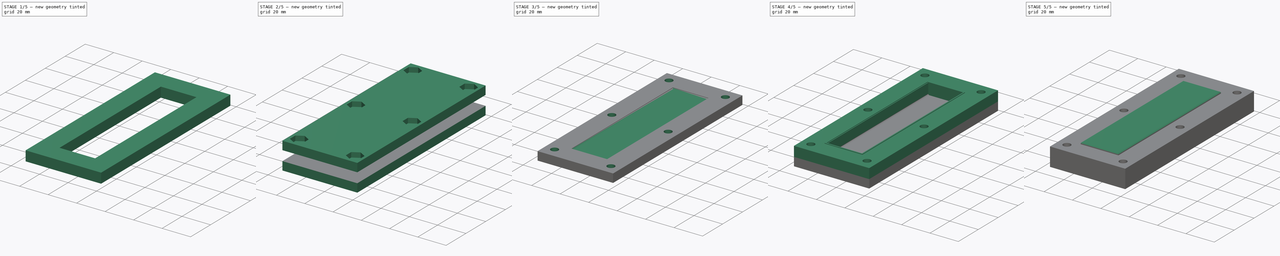
[diagram: build sequence overview — one tinted view per stage of 5, left to right]
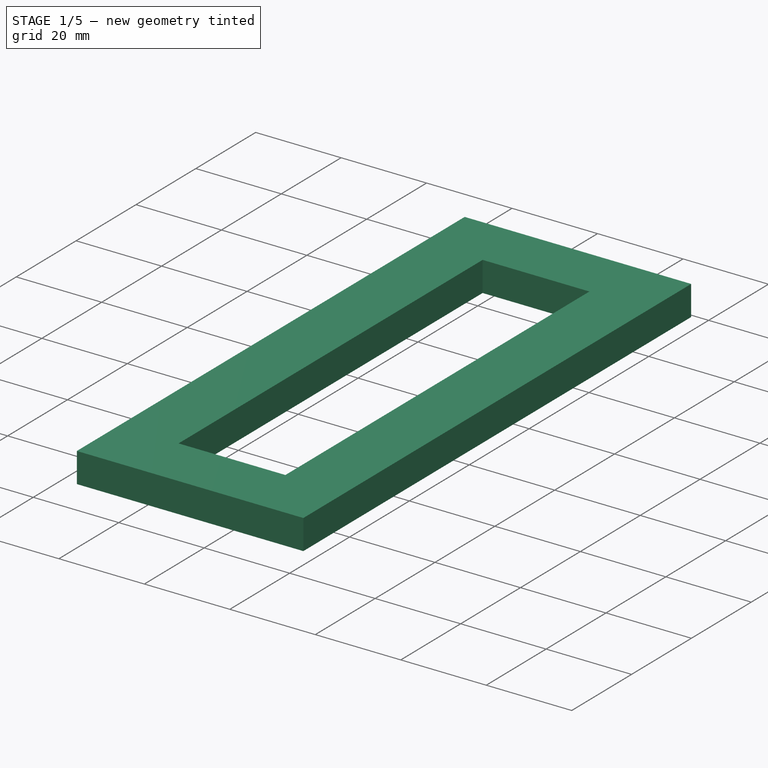
[diagram: stage 1 of 5 — iso view after this stage's code; geometry added in this stage tinted green]
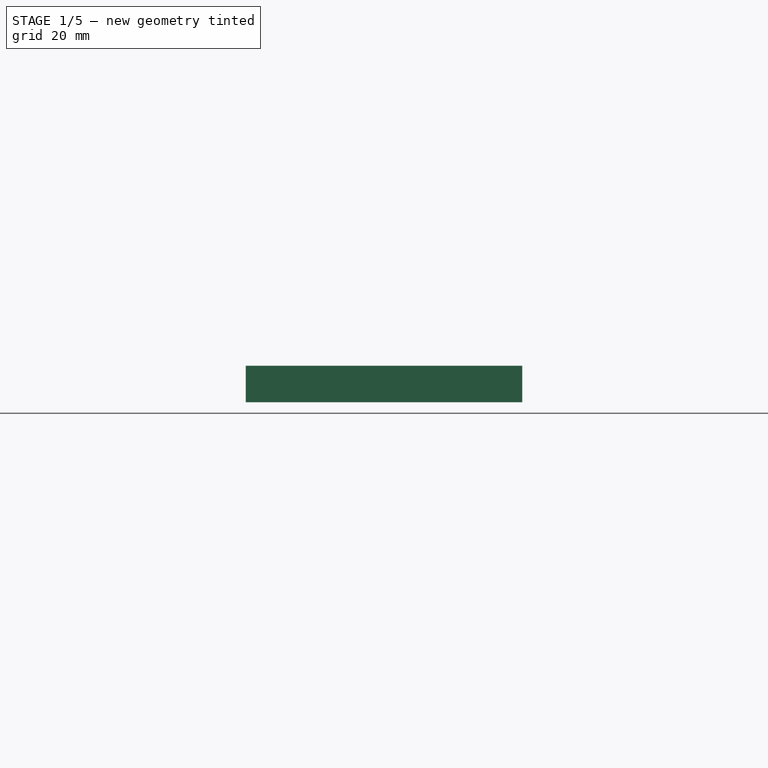
[diagram: stage 1 of 5 — front view after this stage's code; geometry added in this stage tinted green]
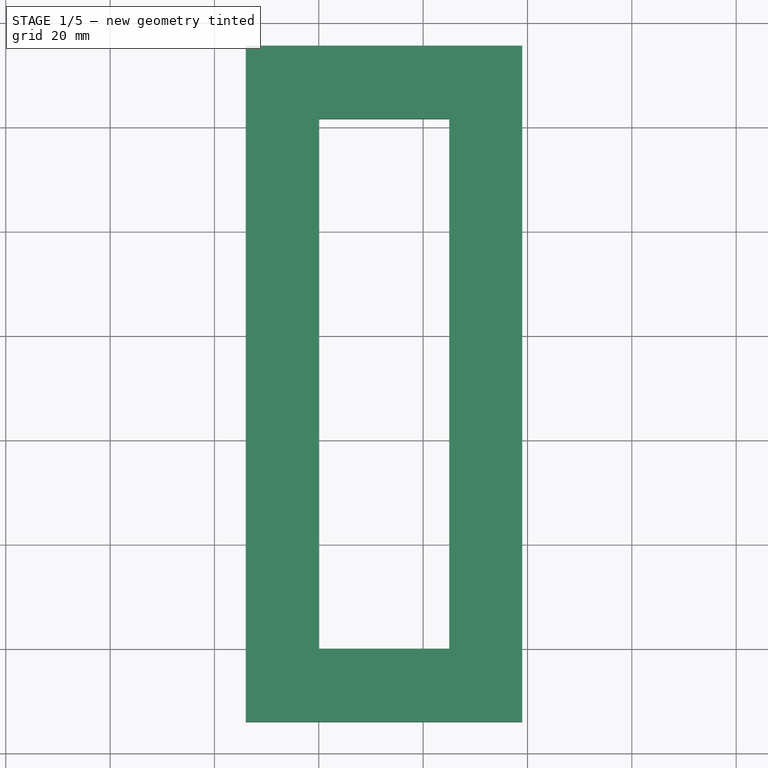
[diagram: stage 1 of 5 — top view after this stage's code; geometry added in this stage tinted green]
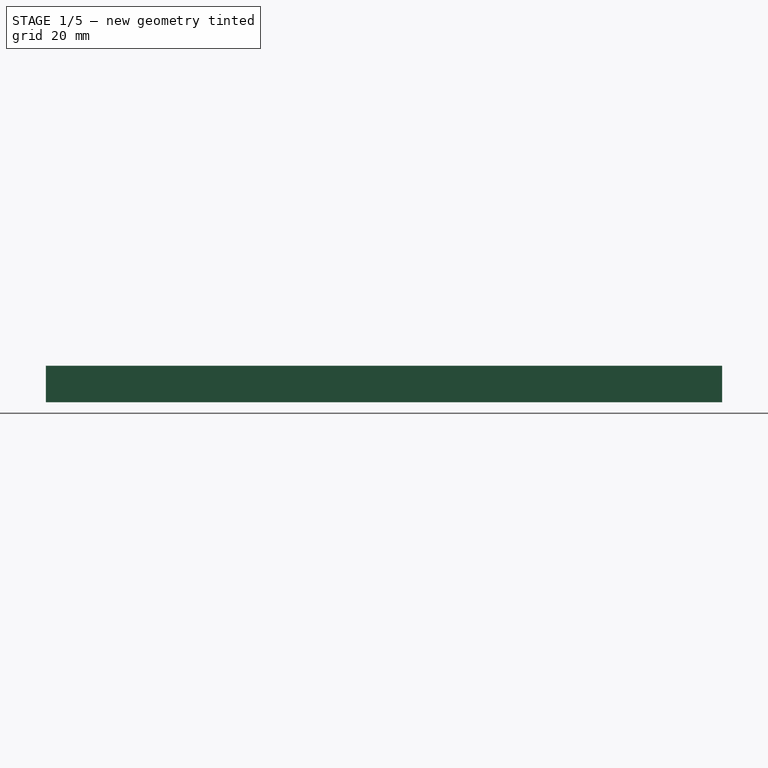
[diagram: stage 1 of 5 — right view after this stage's code; geometry added in this stage tinted green]
FCSTD DOCUMENT  (FreeCAD 0.20R29177 +426 (Git))
Label: Stylus Box
License: All rights reserved
LicenseURL: http://en.wikipedia.org/wiki/All_rights_reserved
objects: Sketcher::SketchObject×14, PartDesign::Pad×9, PartDesign::ShapeBinder×8, PartDesign::Pocket×6, PartDesign::Body×5, PartDesign::Chamfer×4, PartDesign::Fillet×1, App::Part×1
note: 67 computed .brp shape members not serialized (recipe doc carries the construction recipe); baked Part::Feature solids carry a one-line shape summary decoded from their .brp

FEATURE [Sketcher::SketchObject] Sketch
  FullyConstrained = true
  MapMode = 5
  Support = -> [XY_Plane]
  sketch-geometry (13):
    g0: LineSegment StartX=0 StartY=0 StartZ=0 EndX=25 EndY=0 EndZ=0
    g1: LineSegment StartX=25 StartY=0 StartZ=0 EndX=25 EndY=100 EndZ=0
    g2: LineSegment StartX=25 StartY=100 StartZ=0 EndX=0 EndY=100 EndZ=0
    g3: LineSegment StartX=0 StartY=100 StartZ=0 EndX=0 EndY=0 EndZ=0
    g4: LineSegment StartX=0 StartY=0 StartZ=0 EndX=23.4 EndY=0 EndZ=0
    g5: LineSegment StartX=23.4 StartY=0 StartZ=0 EndX=23.4 EndY=101.6 EndZ=0
    g6: LineSegment StartX=23.4 StartY=101.6 StartZ=0 EndX=0 EndY=101.6 EndZ=0
    g7: LineSegment StartX=0 StartY=101.6 StartZ=0 EndX=0 EndY=0 EndZ=0
    g8: LineSegment StartX=25 StartY=100 StartZ=0 EndX=23.4 EndY=100 EndZ=0
    g9: LineSegment StartX=23.4 StartY=100 StartZ=0 EndX=23.4 EndY=101.6 EndZ=0
    g10: LineSegment StartX=23.4 StartY=101.6 StartZ=0 EndX=25 EndY=101.6 EndZ=0
    g11: LineSegment StartX=25 StartY=101.6 StartZ=0 EndX=25 EndY=100 EndZ=0
    g12: LineSegment StartX=0 StartY=101.6 StartZ=0 EndX=25 EndY=101.6 EndZ=0
  constraints (34):
    c: Coincident(g0,g1)
    c: Coincident(g1,g2)
    c: Coincident(g2,g3)
    c: Coincident(g3,g0)
    c: Horizontal(g0)
    c: Horizontal(g2)
    c: Vertical(g1)
    c: Vertical(g3)
    c: Coincident(g0,g-1)
    c: Distance(g3) = 100
    c: Distance(g0) = 25
    c: Coincident(g4,g5)
    c: Coincident(g5,g6)
    c: Coincident(g6,g7)
    c: Coincident(g7,g4)
    c: Horizontal(g4)
    c: Horizontal(g6)
    c: Vertical(g5)
    c: Vertical(g7)
    c: Coincident(g4,g0)
    c: Coincident(g8,g9)
    c: Coincident(g9,g10)
    c: Coincident(g10,g11)
    c: Coincident(g11,g8)
    c: Horizontal(g8)
    c: Horizontal(g10)
    c: Vertical(g9)
    c: Vertical(g11)
    c: Coincident(g8,g1)
    c: Coincident(g9,g5)
    c: Distance(g11) = 1.6
    c: Distance(g8) = 1.6
    c: Coincident(g12,g7)
    c: Coincident(g12,g11)
FEATURE [PartDesign::Pad] Pad
  Direction = (0,0,1)
  Length = 0.8
  Length2 = 10
  Profile = -> Sketch
  ReferenceAxis = -> Sketch [N_Axis]
  Refine = true
  Type = 0
FEATURE [Sketcher::SketchObject] Sketch001
  ExternalGeometry = -> [Pad]
  FullyConstrained = true
  MapMode = 5
  Placement = pos=(0,0,0.8) rot=(0,0,1;0rad)
  Support = -> [Pad]
  sketch-geometry (16):
    g0: LineSegment StartX=25 StartY=101.6 StartZ=0 EndX=0 EndY=101.6 EndZ=0
    g1: LineSegment StartX=0 StartY=101.6 StartZ=0 EndX=0 EndY=0 EndZ=0
    g2: LineSegment StartX=0 StartY=0 StartZ=0 EndX=25 EndY=0 EndZ=0
    g3: LineSegment StartX=25 StartY=0 StartZ=0 EndX=25 EndY=101.6 EndZ=0
    g4: LineSegment StartX=25 StartY=101.6 StartZ=0 EndX=24.2 EndY=101.6 EndZ=0
    g5: LineSegment StartX=24.2 StartY=101.6 StartZ=0 EndX=24.2 EndY=100.8 EndZ=0
    g6: LineSegment StartX=24.2 StartY=100.8 StartZ=0 EndX=25 EndY=100.8 EndZ=0
    g7: LineSegment StartX=25 StartY=100.8 StartZ=0 EndX=25 EndY=101.6 EndZ=0
    g8: LineSegment StartX=0 StartY=0 StartZ=0 EndX=0.8 EndY=0 EndZ=0
    g9: LineSegment StartX=0.8 StartY=0 StartZ=0 EndX=0.8 EndY=0.8 EndZ=0
    g10: LineSegment StartX=0.8 StartY=0.8 StartZ=0 EndX=0 EndY=0.8 EndZ=0
    g11: LineSegment StartX=0 StartY=0.8 StartZ=0 EndX=0 EndY=0 EndZ=0
    g12: LineSegment StartX=0.8 StartY=0.8 StartZ=0 EndX=24.2 EndY=0.8 EndZ=0
    g13: LineSegment StartX=24.2 StartY=0.8 StartZ=0 EndX=24.2 EndY=100.8 EndZ=0
    g14: LineSegment StartX=24.2 StartY=100.8 StartZ=0 EndX=0.8 EndY=100.8 EndZ=0
    g15: LineSegment StartX=0.8 StartY=100.8 StartZ=0 EndX=0.8 EndY=0.8 EndZ=0
  constraints (42):
    c: Coincident(g0,g1)
    c: Coincident(g1,g2)
    c: Coincident(g2,g3)
    c: Coincident(g3,g0)
    c: Horizontal(g0)
    c: Horizontal(g2)
    c: Vertical(g1)
    c: Vertical(g3)
    c: Coincident(g0,g-4)
    c: Coincident(g1,g-3)
    c: Coincident(g4,g5)
    c: Coincident(g5,g6)
    c: Coincident(g6,g7)
    c: Coincident(g7,g4)
    c: Horizontal(g4)
    c: Horizontal(g6)
    c: Vertical(g5)
    c: Vertical(g7)
    c: Coincident(g4,g0)
    c: Coincident(g8,g9)
    c: Coincident(g9,g10)
    c: Coincident(g10,g11)
    c: Coincident(g11,g8)
    c: Horizontal(g8)
    c: Horizontal(g10)
    c: Vertical(g9)
    c: Vertical(g11)
    c: Coincident(g8,g1)
    c: Coincident(g12,g13)
    c: Coincident(g13,g14)
    c: Coincident(g14,g15)
    c: Coincident(g15,g12)
    c: Horizontal(g12)
    c: Horizontal(g14)
    c: Vertical(g13)
    c: Vertical(g15)
    c: Coincident(g12,g9)
    c: Coincident(g13,g5)
    c: Equal(g5,g6)
    c: Equal(g6,g9)
    c: Equal(g10,g9)
    c: Distance(g10) = 0.8
FEATURE [PartDesign::Pad] Pad001
  BaseFeature = -> Pad
  Direction = (0,0,1)
  Length = 7
  Length2 = 10
  Profile = -> Sketch001
  ReferenceAxis = -> Sketch001 [N_Axis]
  Refine = true
  Type = 0
FEATURE [PartDesign::Body] Body001  label="Box Top"
  Group = -> [ShapeBinder,Sketch002,Pad002,Sketch003,Pad003,Sketch004,Pocket,Fillet,Chamfer]
  Origin = -> Origin001
  Placement = pos=(100,0,0) rot=(0,0,1;0rad)
  Tip = -> Chamfer
FEATURE [PartDesign::Chamfer] Chamfer001
  Angle = 45
  Base = -> Pad001 [Face8]
  BaseFeature = -> Pad001
  ChamferType = 0
  FlipDirection = false
  Size = 0.5
  Size2 = 1
  SupportTransform = false
  UseAllEdges = false
FEATURE [PartDesign::Body] Body  label="Bottom Box Template"
  Group = -> [Sketch,Pad,Sketch001,Pad001,Chamfer001]
  Origin = -> Origin
  Tip = -> Chamfer001
FEATURE [PartDesign::ShapeBinder] ShapeBinder001
  Support = -> [Chamfer001]
  TraceSupport = false
FEATURE [Sketcher::SketchObject] Sketch005
  ExternalGeometry = -> [ShapeBinder001]
  FullyConstrained = true
  MapMode = 5
  Placement = pos=(0,0,7.8) rot=(0,0,1;0rad)
  Support = -> [ShapeBinder001]
  sketch-geometry (16):
    g0: LineSegment StartX=0 StartY=101.6 StartZ=0 EndX=25 EndY=101.6 EndZ=0
    g1: LineSegment StartX=25 StartY=101.6 StartZ=0 EndX=25 EndY=0 EndZ=0
    g2: LineSegment StartX=25 StartY=0 StartZ=0 EndX=0 EndY=0 EndZ=0
    g3: LineSegment StartX=0 StartY=0 StartZ=0 EndX=0 EndY=101.6 EndZ=0
    g4: LineSegment StartX=0 StartY=101.6 StartZ=0 EndX=-14 EndY=101.6 EndZ=0
    g5: LineSegment StartX=-14 StartY=101.6 StartZ=0 EndX=-14 EndY=115.6 EndZ=0
    g6: LineSegment StartX=-14 StartY=115.6 StartZ=0 EndX=0 EndY=115.6 EndZ=0
    g7: LineSegment StartX=0 StartY=115.6 StartZ=0 EndX=0 EndY=101.6 EndZ=0
    g8: LineSegment StartX=25 StartY=0 StartZ=0 EndX=39 EndY=0 EndZ=0
    g9: LineSegment StartX=39 StartY=0 StartZ=0 EndX=39 EndY=-14 EndZ=0
    g10: LineSegment StartX=39 StartY=-14 StartZ=0 EndX=25 EndY=-14 EndZ=0
    g11: LineSegment StartX=25 StartY=-14 StartZ=0 EndX=25 EndY=0 EndZ=0
    g12: LineSegment StartX=-14 StartY=115.6 StartZ=0 EndX=39 EndY=115.6 EndZ=0
    g13: LineSegment StartX=39 StartY=115.6 StartZ=0 EndX=39 EndY=-14 EndZ=0
    g14: LineSegment StartX=39 StartY=-14 StartZ=0 EndX=-14 EndY=-14 EndZ=0
    g15: LineSegment StartX=-14 StartY=-14 StartZ=0 EndX=-14 EndY=115.6 EndZ=0
  constraints (42):
    c: Coincident(g0,g1)
    c: Coincident(g1,g2)
    c: Coincident(g2,g3)
    c: Coincident(g3,g0)
    c: Horizontal(g0)
    c: Horizontal(g2)
    c: Vertical(g1)
    c: Vertical(g3)
    c: Coincident(g0,g-4)
    c: Coincident(g1,g-3)
    c: Coincident(g4,g5)
    c: Coincident(g5,g6)
    c: Coincident(g6,g7)
    c: Coincident(g7,g4)
    c: Horizontal(g4)
    c: Horizontal(g6)
    c: Vertical(g5)
    c: Vertical(g7)
    c: Coincident(g4,g0)
    c: Coincident(g8,g9)
    c: Coincident(g9,g10)
    c: Coincident(g10,g11)
    c: Coincident(g11,g8)
    c: Horizontal(g8)
    c: Horizontal(g10)
    c: Vertical(g9)
    c: Vertical(g11)
    c: Coincident(g8,g1)
    c: Equal(g8,g11)
    c: Equal(g8,g4)
    c: Equal(g7,g4)
    c: Distance(g7) = 14
    c: Coincident(g12,g13)
    c: Coincident(g13,g14)
    c: Coincident(g14,g15)
    c: Coincident(g15,g12)
    c: Horizontal(g12)
    c: Horizontal(g14)
    c: Vertical(g13)
    c: Vertical(g15)
    c: Coincident(g12,g5)
    c: Coincident(g13,g9)
FEATURE [PartDesign::Pad] Pad004
  Direction = (0,0,1)
  Length = 10
  Length2 = 10
  Profile = -> Sketch005
  ReferenceAxis = -> Sketch005 [N_Axis]
  Type = 3
  UpToFace = -> ShapeBinder001 [Face2]
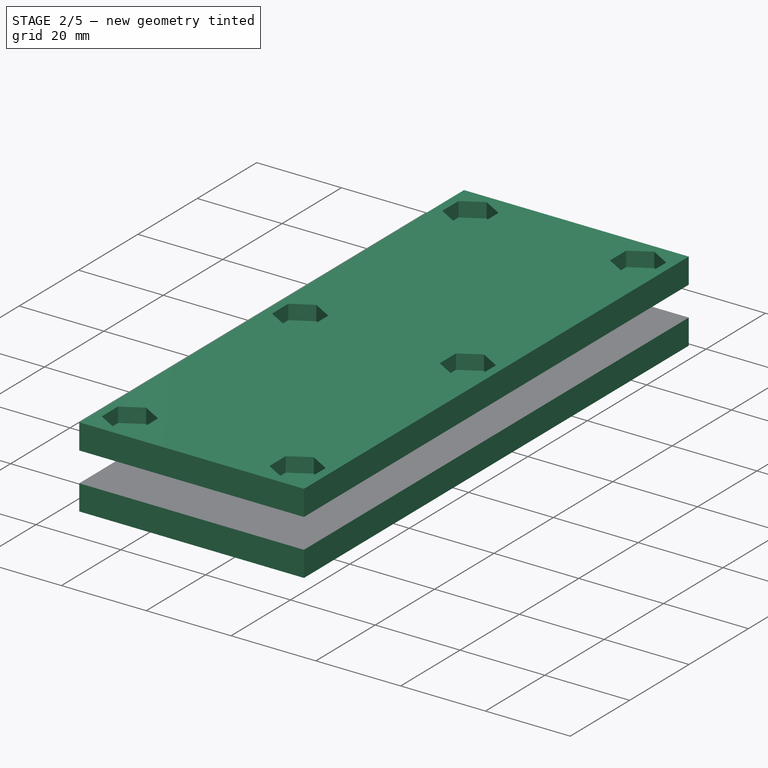
[diagram: stage 2 of 5 — iso view after this stage's code; geometry added in this stage tinted green]
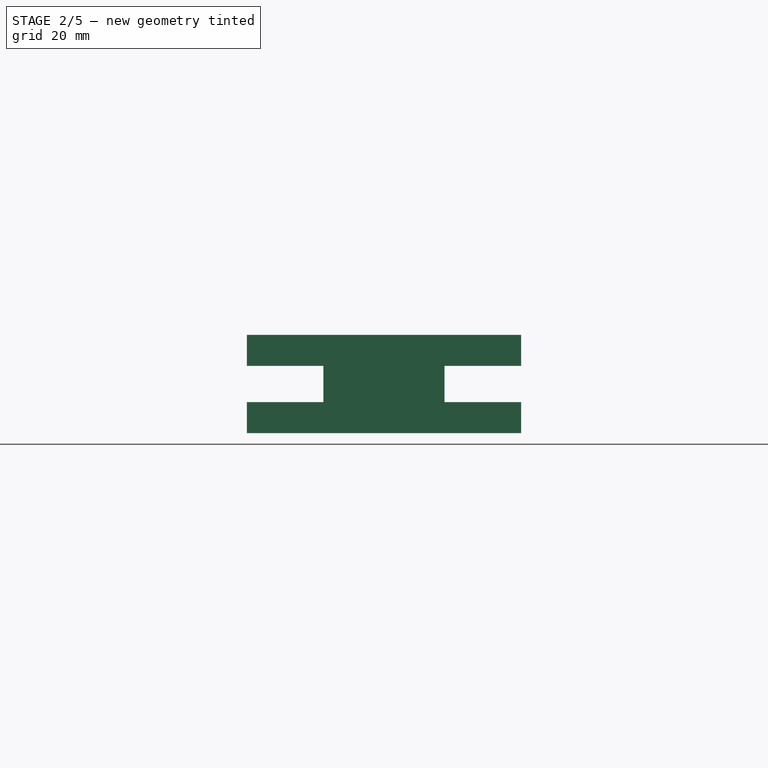
[diagram: stage 2 of 5 — front view after this stage's code; geometry added in this stage tinted green]
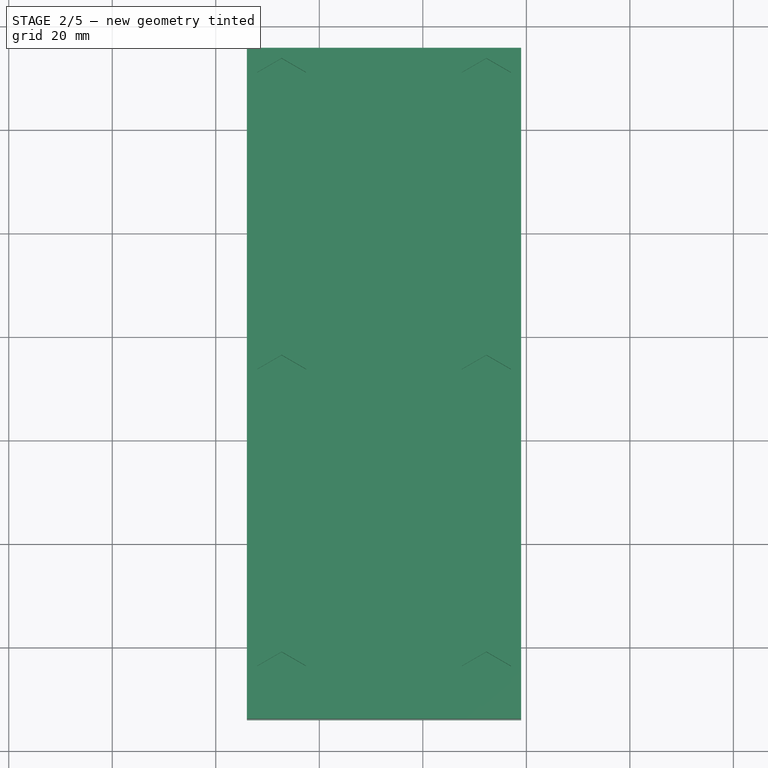
[diagram: stage 2 of 5 — top view after this stage's code; geometry added in this stage tinted green]
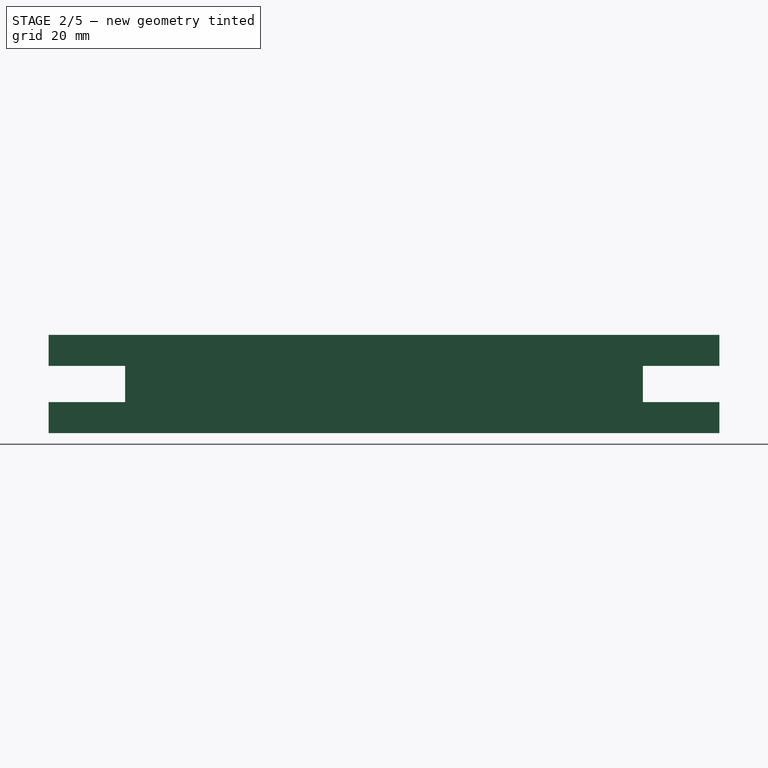
[diagram: stage 2 of 5 — right view after this stage's code; geometry added in this stage tinted green]
FEATURE [PartDesign::ShapeBinder] ShapeBinder002
  Support = -> [Chamfer001]
  TraceSupport = false
FEATURE [PartDesign::ShapeBinder] ShapeBinder003
  Support = -> [Pad004]
  TraceSupport = false
FEATURE [Sketcher::SketchObject] Sketch006
  ExternalGeometry = -> [ShapeBinder003,ShapeBinder002]
  FullyConstrained = true
  MapMode = 5
  Placement = pos=(0,0,7.8) rot=(0,0,1;0rad)
  Support = -> [ShapeBinder003]
  sketch-geometry (8):
    g0: LineSegment StartX=-14 StartY=115.6 StartZ=0 EndX=39 EndY=115.6 EndZ=0
    g1: LineSegment StartX=39 StartY=115.6 StartZ=0 EndX=39 EndY=-14 EndZ=0
    g2: LineSegment StartX=39 StartY=-14 StartZ=0 EndX=-14 EndY=-14 EndZ=0
    g3: LineSegment StartX=-14 StartY=-14 StartZ=0 EndX=-14 EndY=115.6 EndZ=0
    g4: LineSegment StartX=24.2 StartY=0.8 StartZ=0 EndX=0.8 EndY=0.8 EndZ=0
    g5: LineSegment StartX=0.8 StartY=0.8 StartZ=0 EndX=0.8 EndY=100.8 EndZ=0
    g6: LineSegment StartX=0.8 StartY=100.8 StartZ=0 EndX=24.2 EndY=100.8 EndZ=0
    g7: LineSegment StartX=24.2 StartY=100.8 StartZ=0 EndX=24.2 EndY=0.8 EndZ=0
  constraints (20):
    c: Coincident(g0,g1)
    c: Coincident(g1,g2)
    c: Coincident(g2,g3)
    c: Coincident(g3,g0)
    c: Horizontal(g0)
    c: Horizontal(g2)
    c: Vertical(g1)
    c: Vertical(g3)
    c: Coincident(g0,g-3)
    c: Coincident(g1,g-4)
    c: Coincident(g4,g5)
    c: Coincident(g5,g6)
    c: Coincident(g6,g7)
    c: Coincident(g7,g4)
    c: Horizontal(g4)
    c: Horizontal(g6)
    c: Vertical(g5)
    c: Vertical(g7)
    c: Coincident(g4,g-5)
    c: Coincident(g5,g-6)
FEATURE [PartDesign::Pad] Pad005
  Direction = (0,0,1)
  Length = 6
  Length2 = 10
  Profile = -> Sketch006
  ReferenceAxis = -> Sketch006 [N_Axis]
  Type = 0
FEATURE [Sketcher::SketchObject] Sketch007
  ExternalGeometry = -> [Pad005]
  FullyConstrained = true
  MapMode = 5
  Placement = pos=(0,0,13.8) rot=(0,0,1;0rad)
  Support = -> [Pad005]
  sketch-geometry (4):
    g0: LineSegment StartX=0.8 StartY=100.8 StartZ=0 EndX=24.2 EndY=100.8 EndZ=0
    g1: LineSegment StartX=24.2 StartY=100.8 StartZ=0 EndX=24.2 EndY=0.8 EndZ=0
    g2: LineSegment StartX=24.2 StartY=0.8 StartZ=0 EndX=0.8 EndY=0.8 EndZ=0
    g3: LineSegment StartX=0.8 StartY=0.8 StartZ=0 EndX=0.8 EndY=100.8 EndZ=0
  constraints (10):
    c: Coincident(g0,g1)
    c: Coincident(g1,g2)
    c: Coincident(g2,g3)
    c: Coincident(g3,g0)
    c: Horizontal(g0)
    c: Horizontal(g2)
    c: Vertical(g1)
    c: Vertical(g3)
    c: Coincident(g0,g-3)
    c: Coincident(g1,g-4)
FEATURE [PartDesign::Pad] Pad006
  BaseFeature = -> Pad005
  Direction = (0,0,1)
  Length = 0
  Length2 = 10
  Profile = -> Sketch007
  ReferenceAxis = -> Sketch007 [N_Axis]
  Refine = true
  Reversed = true
  Type = 3
  UpToFace = -> Pad004 [Face4]
FEATURE [PartDesign::ShapeBinder] ShapeBinder004
  Support = -> [Pad004]
  TraceSupport = false
FEATURE [PartDesign::ShapeBinder] ShapeBinder005
  Support = -> [Chamfer001]
  TraceSupport = false
FEATURE [PartDesign::Pad] Pad007
  Direction = (0,0,-1)
  Length = 6
  Length2 = 10
  Profile = -> ShapeBinder004 [Face1]
  Type = 0
FEATURE [Sketcher::SketchObject] Sketch009
  ExternalGeometry = -> [Pad006]
  FullyConstrained = true
  MapMode = 5
  Placement = pos=(0,0,13.8) rot=(0,0,1;0rad)
  Support = -> [Pad006]
  sketch-geometry (60):
    g0: LineSegment StartX=32.275 StartY=113.6 StartZ=0 EndX=27.55 EndY=110.872 EndZ=0
    g1: LineSegment StartX=27.55 StartY=110.872 StartZ=0 EndX=27.55 EndY=105.416 EndZ=0
    g2: LineSegment StartX=27.55 StartY=105.416 StartZ=0 EndX=32.275 EndY=102.688 EndZ=0
    g3: LineSegment StartX=32.275 StartY=102.688 StartZ=0 EndX=37 EndY=105.416 EndZ=0
    g4: LineSegment StartX=37 StartY=105.416 StartZ=0 EndX=37 EndY=110.872 EndZ=0
    g5: LineSegment StartX=37 StartY=110.872 StartZ=0 EndX=32.275 EndY=113.6 EndZ=0
    g6: Circle CenterX=32.275 CenterY=108.144 CenterZ=0 NormalX=0 NormalY=0 NormalZ=1 AngleXU=0 Radius=5.45596
    g7: LineSegment StartX=27.55 StartY=105.416 StartZ=0 EndX=37 EndY=105.416 EndZ=0
    g8: LineSegment StartX=39 StartY=115.6 StartZ=0 EndX=-14 EndY=115.6 EndZ=0
    g9: LineSegment StartX=-14 StartY=-14 StartZ=0 EndX=39 EndY=-14 EndZ=0
    g10: LineSegment StartX=32.275 StartY=113.6 StartZ=0 EndX=32.275 EndY=115.6 EndZ=0
    g11: LineSegment StartX=37 StartY=105.416 StartZ=0 EndX=39 EndY=105.416 EndZ=0
    g12: LineSegment StartX=-7.275 StartY=113.6 StartZ=0 EndX=-12 EndY=110.872 EndZ=0
    g13: LineSegment StartX=-12 StartY=110.872 StartZ=0 EndX=-12 EndY=105.416 EndZ=0
    g14: LineSegment StartX=-12 StartY=105.416 StartZ=0 EndX=-7.275 EndY=102.688 EndZ=0
    g15: LineSegment StartX=-7.275 StartY=102.688 StartZ=0 EndX=-2.55 EndY=105.416 EndZ=0
    g16: LineSegment StartX=-2.55 StartY=105.416 StartZ=0 EndX=-2.55 EndY=110.872 EndZ=0
    g17: LineSegment StartX=-2.55 StartY=110.872 StartZ=0 EndX=-7.275 EndY=113.6 EndZ=0
    g18: Circle CenterX=-7.275 CenterY=108.144 CenterZ=0 NormalX=0 NormalY=0 NormalZ=1 AngleXU=0 Radius=5.45596
    g19: LineSegment StartX=32.275 StartY=56.256 StartZ=0 EndX=27.55 EndY=53.528 EndZ=0
    g20: LineSegment StartX=27.55 StartY=53.528 StartZ=0 EndX=27.55 EndY=48.072 EndZ=0
    g21: LineSegment StartX=27.55 StartY=48.072 StartZ=0 EndX=32.275 EndY=45.344 EndZ=0
    g22: LineSegment StartX=32.275 StartY=45.344 StartZ=0 EndX=37 EndY=48.072 EndZ=0
    g23: LineSegment StartX=37 StartY=48.072 StartZ=0 EndX=37 EndY=53.528 EndZ=0
    g24: LineSegment StartX=37 StartY=53.528 StartZ=0 EndX=32.275 EndY=56.256 EndZ=0
    g25: Circle CenterX=32.275 CenterY=50.8 CenterZ=0 NormalX=0 NormalY=0 NormalZ=1 AngleXU=0 Radius=5.45596
    g26: LineSegment StartX=-7.275 StartY=56.256 StartZ=0 EndX=-12 EndY=53.528 EndZ=0
    g27: LineSegment StartX=-12 StartY=53.528 StartZ=0 EndX=-12 EndY=48.072 EndZ=0
    g28: LineSegment StartX=-12 StartY=48.072 StartZ=0 EndX=-7.275 EndY=45.344 EndZ=0
    g29: LineSegment StartX=-7.275 StartY=45.344 StartZ=0 EndX=-2.55 EndY=48.072 EndZ=0
    g30: LineSegment StartX=-2.55 StartY=48.072 StartZ=0 EndX=-2.55 EndY=53.528 EndZ=0
    g31: LineSegment StartX=-2.55 StartY=53.528 StartZ=0 EndX=-7.275 EndY=56.256 EndZ=0
    g32: Circle CenterX=-7.275 CenterY=50.8 CenterZ=0 NormalX=0 NormalY=0 NormalZ=1 AngleXU=0 Radius=5.45596
    g33: LineSegment StartX=-7.275 StartY=-1.08808 StartZ=0 EndX=-12 EndY=-3.81606 EndZ=0
    g34: LineSegment StartX=-12 StartY=-3.81606 StartZ=0 EndX=-12 EndY=-9.27202 EndZ=0
    g35: LineSegment StartX=-12 StartY=-9.27202 StartZ=0 EndX=-7.275 EndY=-12 EndZ=0
    g36: LineSegment StartX=-7.275 StartY=-12 StartZ=0 EndX=-2.55 EndY=-9.27202 EndZ=0
    g37: LineSegment StartX=-2.55 StartY=-9.27202 StartZ=0 EndX=-2.55 EndY=-3.81606 EndZ=0
    g38: LineSegment StartX=-2.55 StartY=-3.81606 StartZ=0 EndX=-7.275 EndY=-1.08808 EndZ=0
    g39: Circle CenterX=-7.275 CenterY=-6.54404 CenterZ=0 NormalX=0 NormalY=0 NormalZ=1 AngleXU=0 Radius=5.45596
    g40: LineSegment StartX=32.275 StartY=-1.08808 StartZ=0 EndX=27.55 EndY=-3.81606 EndZ=0
    g41: LineSegment StartX=27.55 StartY=-3.81606 StartZ=0 EndX=27.55 EndY=-9.27202 EndZ=0
    g42: LineSegment StartX=27.55 StartY=-9.27202 StartZ=0 EndX=32.275 EndY=-12 EndZ=0
    g43: LineSegment StartX=32.275 StartY=-12 StartZ=0 EndX=37 EndY=-9.27202 EndZ=0
    g44: LineSegment StartX=37 StartY=-9.27202 StartZ=0 EndX=37 EndY=-3.81606 EndZ=0
    g45: LineSegment StartX=37 StartY=-3.81606 StartZ=0 EndX=32.275 EndY=-1.08808 EndZ=0
    g46: Circle CenterX=32.275 CenterY=-6.54404 CenterZ=0 NormalX=0 NormalY=0 NormalZ=1 AngleXU=0 Radius=5.45596
    g47: LineSegment StartX=-12 StartY=-9.27202 StartZ=0 EndX=-2.55 EndY=-9.27202 EndZ=0
    g48: LineSegment StartX=27.55 StartY=-9.27202 StartZ=0 EndX=37 EndY=-9.27202 EndZ=0
    g49: LineSegment StartX=-12 StartY=48.072 StartZ=0 EndX=-2.55 EndY=48.072 EndZ=0
    g50: LineSegment StartX=-12 StartY=105.416 StartZ=0 EndX=-2.55 EndY=105.416 EndZ=0
    g51: LineSegment StartX=27.55 StartY=48.072 StartZ=0 EndX=37 EndY=48.072 EndZ=0
    g52: LineSegment StartX=-14 StartY=50.8 StartZ=0 EndX=-12 EndY=50.8 EndZ=0
    g53: LineSegment StartX=37 StartY=50.8 StartZ=0 EndX=39 EndY=50.8 EndZ=0
    g54: LineSegment StartX=-7.275 StartY=113.6 StartZ=0 EndX=-7.275 EndY=115.6 EndZ=0
    g55: LineSegment StartX=-12 StartY=110.872 StartZ=0 EndX=-14 EndY=110.872 EndZ=0
    g56: LineSegment StartX=-12 StartY=-9.27202 StartZ=0 EndX=-14 EndY=-9.27202 EndZ=0
    g57: LineSegment StartX=-7.275 StartY=-12 StartZ=0 EndX=-7.275 EndY=-14 EndZ=0
    g58: LineSegment StartX=32.275 StartY=-12 StartZ=0 EndX=32.275 EndY=-14 EndZ=0
    g59: LineSegment StartX=37 StartY=-9.27202 StartZ=0 EndX=39 EndY=-9.27202 EndZ=0
  constraints (146):
    c: Coincident(g0,g1)
    c: Coincident(g1,g2)
    c: Coincident(g2,g3)
    c: Coincident(g3,g4)
    c: Coincident(g4,g5)
    c: Coincident(g5,g0)
    c: Equal(g0, g1-g5) x5
    c: PointOnObject(g0,g6)
    c: PointOnObject(g1,g6)
    c: PointOnObject(g2,g6)
    c: PointOnObject(g3,g6)
    c: PointOnObject(g4,g6)
    c: PointOnObject(g5,g6)
    c: Coincident(g7,g1)
    c: Coincident(g7,g3)
    c: Horizontal(g7)
    c: Distance(g7) = 9.45
    c: Coincident(g8,g-4)
    c: Coincident(g8,g-3)
    c: Coincident(g9,g-3)
    c: Coincident(g9,g-4)
    c: Coincident(g10,g0)
    c: PointOnObject(g10,g8)
    c: Vertical(g10)
    c: Coincident(g11,g3)
    c: PointOnObject(g11,g-4)
    c: Horizontal(g11)
    c: Equal(g10,g11)
    c: Distance(g11) = 2
    c: Coincident(g12,g13)
    c: Coincident(g13,g14)
    c: Coincident(g14,g15)
    c: Coincident(g15,g16)
    c: Coincident(g16,g17)
    c: Coincident(g17,g12)
    c: Equal(g12, g13-g17) x5
    c: PointOnObject(g12,g18)
    c: PointOnObject(g13,g18)
    c: PointOnObject(g14,g18)
    c: PointOnObject(g15,g18)
    c: PointOnObject(g16,g18)
    c: PointOnObject(g17,g18)
    c: Coincident(g19,g20)
    c: Coincident(g20,g21)
    c: Coincident(g21,g22)
    c: Coincident(g22,g23)
    c: Coincident(g23,g24)
    c: Coincident(g24,g19)
    c: Equal(g19, g20-g24) x5
    c: PointOnObject(g19,g25)
    c: PointOnObject(g20,g25)
    c: PointOnObject(g21,g25)
    c: PointOnObject(g22,g25)
    c: PointOnObject(g23,g25)
    c: PointOnObject(g24,g25)
    c: Coincident(g26,g27)
    c: Coincident(g27,g28)
    c: Coincident(g28,g29)
    c: Coincident(g29,g30)
    c: Coincident(g30,g31)
    c: Coincident(g31,g26)
    c: Equal(g26, g27-g31) x5
    c: PointOnObject(g26,g32)
    c: PointOnObject(g27,g32)
    c: PointOnObject(g28,g32)
    c: PointOnObject(g29,g32)
    c: PointOnObject(g30,g32)
    c: PointOnObject(g31,g32)
    c: Coincident(g33,g34)
    c: Coincident(g34,g35)
    c: Coincident(g35,g36)
    c: Coincident(g36,g37)
    c: Coincident(g37,g38)
    c: Coincident(g38,g33)
    c: Equal(g33, g34-g38) x5
    c: PointOnObject(g33,g39)
    c: PointOnObject(g34,g39)
    c: PointOnObject(g35,g39)
    c: PointOnObject(g36,g39)
    c: PointOnObject(g37,g39)
    c: PointOnObject(g38,g39)
    c: Coincident(g40,g41)
    c: Coincident(g41,g42)
    c: Coincident(g42,g43)
    c: Coincident(g43,g44)
    c: Coincident(g44,g45)
    c: Coincident(g45,g40)
    c: Equal(g40, g41-g45) x5
    c: PointOnObject(g40,g46)
    c: PointOnObject(g41,g46)
    c: PointOnObject(g42,g46)
    c: PointOnObject(g43,g46)
    c: PointOnObject(g44,g46)
    c: PointOnObject(g45,g46)
    c: Coincident(g47,g34)
    c: Coincident(g47,g36)
    c: Horizontal(g47)
    c: Coincident(g48,g41)
    c: Coincident(g48,g43)
    c: Horizontal(g48)
    c: Coincident(g49,g27)
    c: Coincident(g49,g29)
    c: Horizontal(g49)
    c: Coincident(g50,g13)
    c: Coincident(g50,g15)
    c: Horizontal(g50)
    c: Equal(g50,g7)
    c: Equal(g50,g49)
    c: Equal(g49,g47)
    c: Equal(g47,g48)
    c: Coincident(g51,g20)
    c: Coincident(g51,g22)
    c: Horizontal(g51)
    c: Equal(g49,g51)
    c: Horizontal(g52)
    c: Horizontal(g53)
    c: Coincident(g54,g12)
    c: PointOnObject(g54,g8)
    c: Vertical(g54)
    c: Coincident(g55,g12)
    c: PointOnObject(g55,g-3)
    c: Horizontal(g55)
    c: Coincident(g56,g34)
    c: PointOnObject(g56,g-3)
    c: Horizontal(g56)
    c: Coincident(g57,g35)
    c: PointOnObject(g57,g9)
    c: Vertical(g57)
    c: Coincident(g58,g42)
    c: PointOnObject(g58,g9)
    c: Vertical(g58)
    c: Coincident(g59,g43)
    c: PointOnObject(g59,g-4)
    c: Horizontal(g59)
    c: Equal(g59,g58)
    c: Equal(g58,g57)
    c: Equal(g57,g56)
    c: Equal(g52,g56)
    c: Equal(g53,g52)
    c: Equal(g53,g55)
    c: Equal(g55,g54)
    c: Equal(g54,g10)
    c: Symmetric(g8,g9,g52)
    c: Symmetric(g26,g27,g52)
    c: Symmetric(g23,g22,g53)
    c: Symmetric(g8,g9,g53)
FEATURE [PartDesign::Pocket] Pocket001
  BaseFeature = -> Pad006
  Direction = (0,0,-1)
  Length = 3.5
  Length2 = 5
  Profile = -> Sketch009
  ReferenceAxis = -> Sketch009 [N_Axis]
  Type = 0
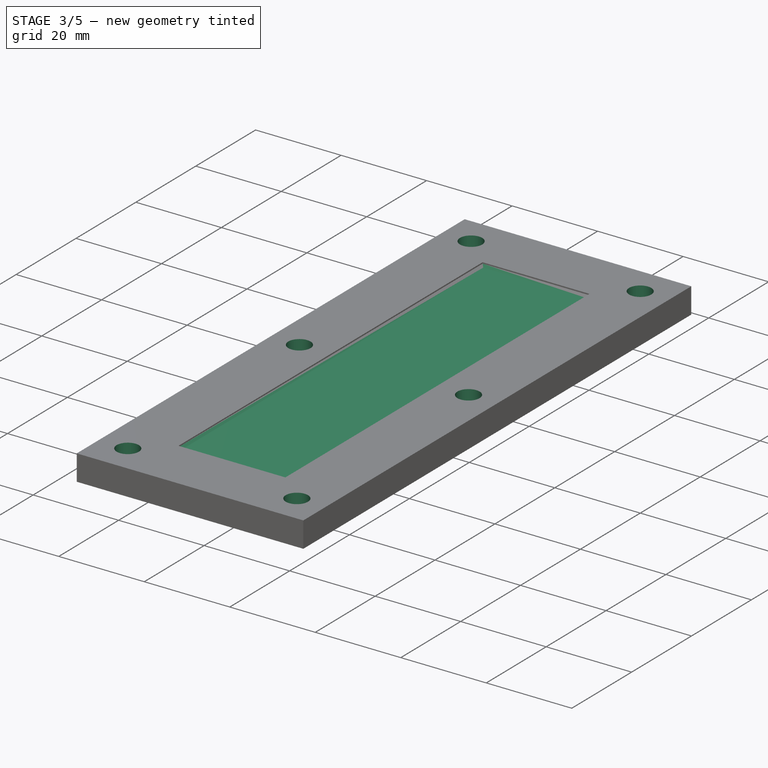
[diagram: stage 3 of 5 — iso view after this stage's code; geometry added in this stage tinted green]
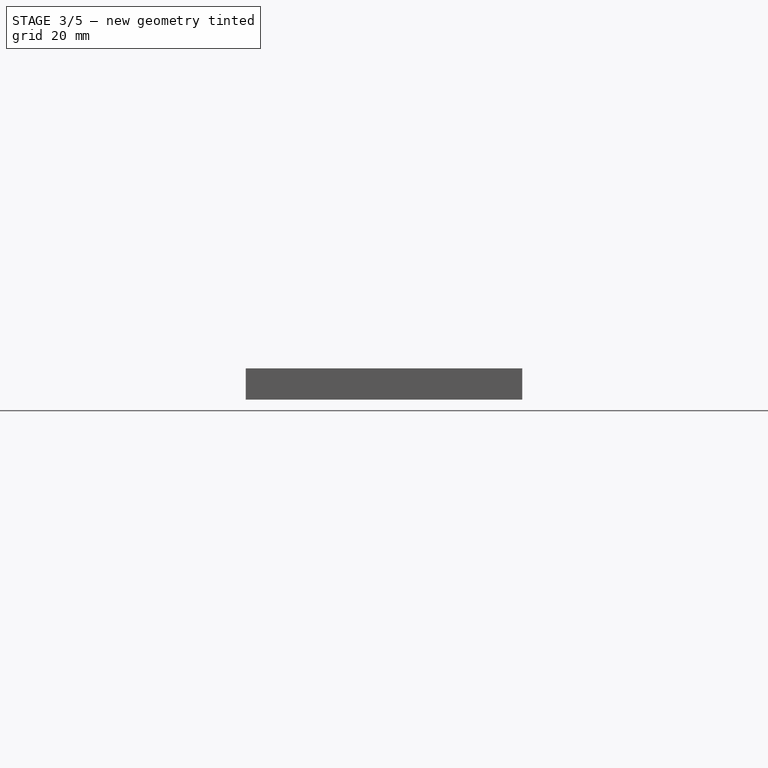
[diagram: stage 3 of 5 — front view after this stage's code; geometry added in this stage tinted green]
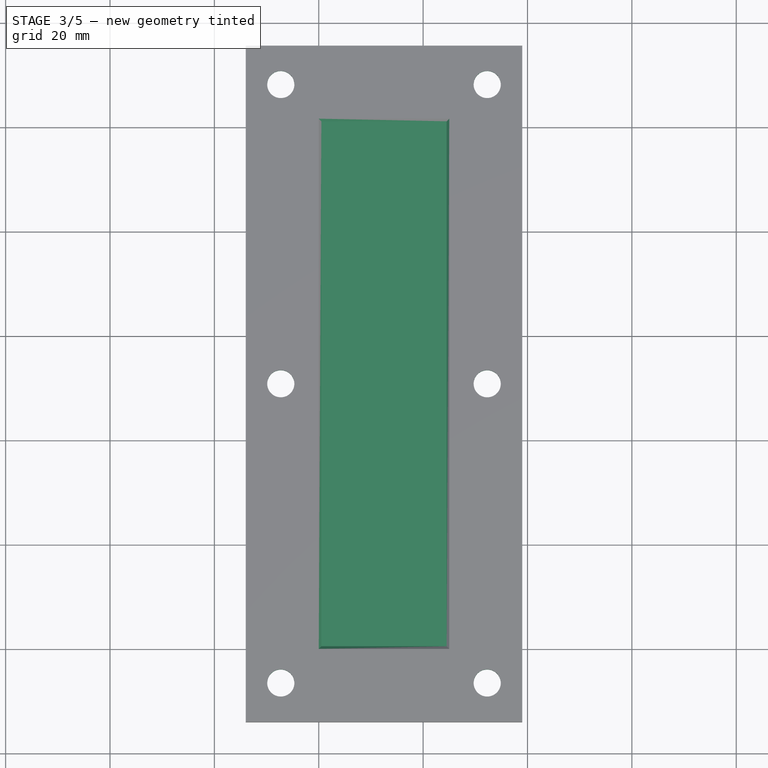
[diagram: stage 3 of 5 — top view after this stage's code; geometry added in this stage tinted green]
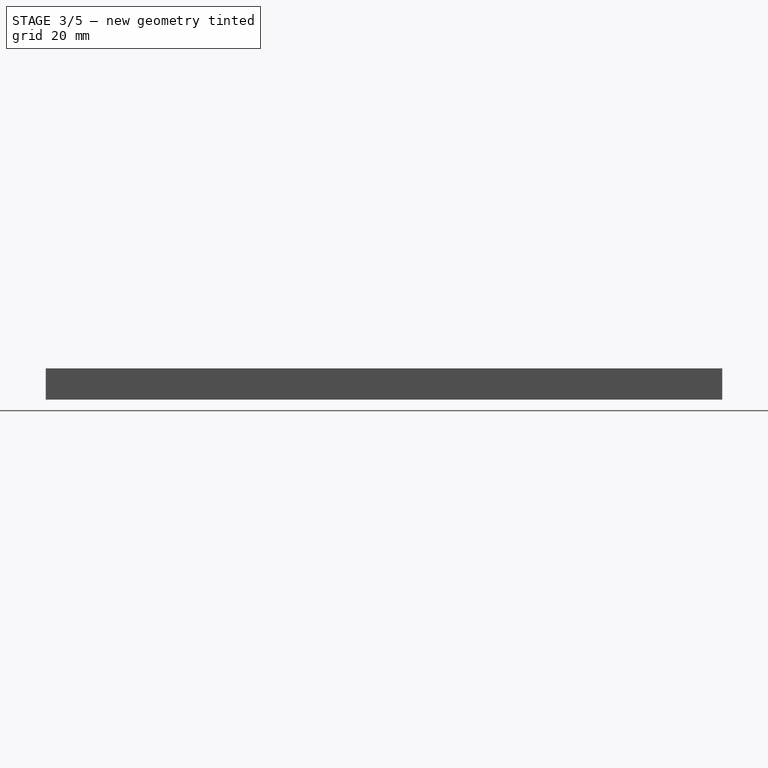
[diagram: stage 3 of 5 — right view after this stage's code; geometry added in this stage tinted green]
FEATURE [Sketcher::SketchObject] Sketch008
  ExternalGeometry = -> [Pad007]
  FullyConstrained = true
  MapMode = 5
  Placement = pos=(0,0,-5.2) rot=(1,0,0;3.14159rad)
  Support = -> [Pad007]
  sketch-geometry (4):
    g0: LineSegment StartX=0 StartY=0 StartZ=0 EndX=25 EndY=0 EndZ=0
    g1: LineSegment StartX=25 StartY=0 StartZ=0 EndX=25 EndY=-101.6 EndZ=0
    g2: LineSegment StartX=25 StartY=-101.6 StartZ=0 EndX=0 EndY=-101.6 EndZ=0
    g3: LineSegment StartX=0 StartY=-101.6 StartZ=0 EndX=0 EndY=0 EndZ=0
  constraints (10):
    c: Coincident(g0,g1)
    c: Coincident(g1,g2)
    c: Coincident(g2,g3)
    c: Coincident(g3,g0)
    c: Horizontal(g0)
    c: Horizontal(g2)
    c: Vertical(g1)
    c: Vertical(g3)
    c: Coincident(g0,g-3)
    c: Coincident(g1,g-4)
FEATURE [PartDesign::Pad] Pad008
  BaseFeature = -> Pad007
  Direction = (0,0,-1)
  Length = 10
  Length2 = 10
  Profile = -> Sketch008
  ReferenceAxis = -> Sketch008 [N_Axis]
  Type = 3
  UpToFace = -> ShapeBinder005 [Face1]
FEATURE [PartDesign::Chamfer] Chamfer002
  Angle = 45
  Base = -> Pad008 [Face12]
  BaseFeature = -> Pad008
  ChamferType = 0
  FlipDirection = false
  Refine = true
  Size = 0.5
  Size2 = 1
  SupportTransform = false
  UseAllEdges = false
FEATURE [PartDesign::ShapeBinder] ShapeBinder006
  Support = -> [Pocket001]
  TraceSupport = false
FEATURE [Sketcher::SketchObject] Sketch010
  ExternalGeometry = -> [ShapeBinder006]
  FullyConstrained = true
  MapMode = 5
  Placement = pos=(0,0,-5.2) rot=(1,0,0;3.14159rad)
  Support = -> [Chamfer002]
  sketch-geometry (6):
    g0: Circle CenterX=-7.275 CenterY=-108.144 CenterZ=0 NormalX=0 NormalY=0 NormalZ=1 AngleXU=0 Radius=4.9
    g1: Circle CenterX=32.275 CenterY=-108.144 CenterZ=0 NormalX=0 NormalY=0 NormalZ=1 AngleXU=0 Radius=4.9
    g2: Circle CenterX=32.275 CenterY=-50.8 CenterZ=0 NormalX=0 NormalY=0 NormalZ=1 AngleXU=0 Radius=4.9
    g3: Circle CenterX=-7.275 CenterY=-50.8 CenterZ=0 NormalX=0 NormalY=0 NormalZ=1 AngleXU=0 Radius=4.9
    g4: Circle CenterX=-7.275 CenterY=6.54404 CenterZ=0 NormalX=0 NormalY=0 NormalZ=1 AngleXU=0 Radius=4.9
    g5: Circle CenterX=32.275 CenterY=6.54404 CenterZ=0 NormalX=0 NormalY=0 NormalZ=1 AngleXU=0 Radius=4.9
  constraints (12):
    c: Symmetric(g-12,g-11,g4)
    c: Symmetric(g-13,g-14,g5)
    c: Symmetric(g-8,g-7,g2)
    c: Symmetric(g-10,g-9,g3)
    c: Symmetric(g-3,g-4,g0)
    c: Symmetric(g-6,g-5,g1)
    c: Equal(g1,g0)
    c: Equal(g0,g3)
    c: Equal(g3,g2)
    c: Equal(g2,g5)
    c: Equal(g5,g4)
    c: Diameter(g5) = 9.8
FEATURE [PartDesign::Pocket] Pocket002
  BaseFeature = -> Chamfer002
  Direction = (0,0,1)
  Length = 3.5
  Length2 = 5
  Profile = -> Sketch010
  ReferenceAxis = -> Sketch010 [N_Axis]
  Type = 0
FEATURE [PartDesign::Body] Body002  label="Middle Mold-Bottom"
  Group = -> [ShapeBinder001,Sketch005,Pad004,ShapeBinder008,Sketch013,Pocket005]
  Origin = -> Origin002
  Placement = pos=(0,150,0) rot=(0,0,1;0rad)
  Tip = -> Pocket005
FEATURE [Sketcher::SketchObject] Sketch014
  ExternalGeometry = -> [Pocket002]
  FullyConstrained = true
  MapMode = 5
  Placement = pos=(0,0,-5.2) rot=(1,0,0;3.14159rad)
  Support = -> [Pocket002]
  sketch-geometry (6):
    g0: Circle CenterX=-7.275 CenterY=-108.144 CenterZ=0 NormalX=0 NormalY=0 NormalZ=1 AngleXU=0 Radius=2.6
    g1: Circle CenterX=32.275 CenterY=-108.144 CenterZ=0 NormalX=0 NormalY=0 NormalZ=1 AngleXU=0 Radius=2.6
    g2: Circle CenterX=32.275 CenterY=-50.8 CenterZ=0 NormalX=0 NormalY=0 NormalZ=1 AngleXU=0 Radius=2.6
    g3: Circle CenterX=-7.275 CenterY=-50.8 CenterZ=0 NormalX=0 NormalY=0 NormalZ=1 AngleXU=0 Radius=2.6
    g4: Circle CenterX=-7.275 CenterY=6.54404 CenterZ=0 NormalX=0 NormalY=0 NormalZ=1 AngleXU=0 Radius=2.6
    g5: Circle CenterX=32.275 CenterY=6.54404 CenterZ=0 NormalX=0 NormalY=0 NormalZ=1 AngleXU=0 Radius=2.6
  constraints (12):
    c: Coincident(g0,g-7)
    c: Coincident(g1,g-8)
    c: Coincident(g2,g-5)
    c: Coincident(g3,g-6)
    c: Coincident(g4,g-3)
    c: Coincident(g5,g-4)
    c: Diameter(g4) = 5.2
    c: Equal(g4,g5)
    c: Equal(g5,g2)
    c: Equal(g2,g3)
    c: Equal(g3,g0)
    c: Equal(g0,g1)
FEATURE [PartDesign::Pocket] Pocket006
  BaseFeature = -> Pocket002
  Direction = (0,0,1)
  Length = 100
  Length2 = 5
  Profile = -> Sketch014
  ReferenceAxis = -> Sketch014 [N_Axis]
  Type = 0
FEATURE [PartDesign::Body] Body004  label="Bottom Mold-Bottom"
  Group = -> [ShapeBinder004,ShapeBinder005,Pad007,Sketch008,Pad008,Chamfer002,ShapeBinder006,Sketch010,Pocket002,Sketch014,Pocket006]
  Origin = -> Origin005
  Placement = pos=(0,150,0) rot=(0,0,1;0rad)
  Tip = -> Pocket006
FEATURE [App::Part] Part  label="Stylus Box Bottom-"
  Group = -> [Body,Body002,Body003,Body004]
  Origin = -> Origin004
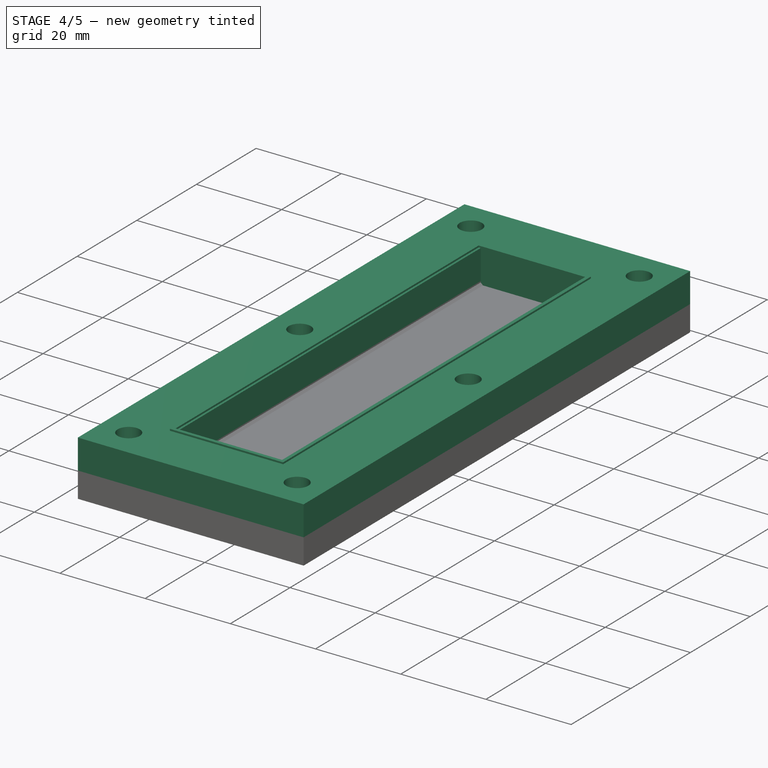
[diagram: stage 4 of 5 — iso view after this stage's code; geometry added in this stage tinted green]
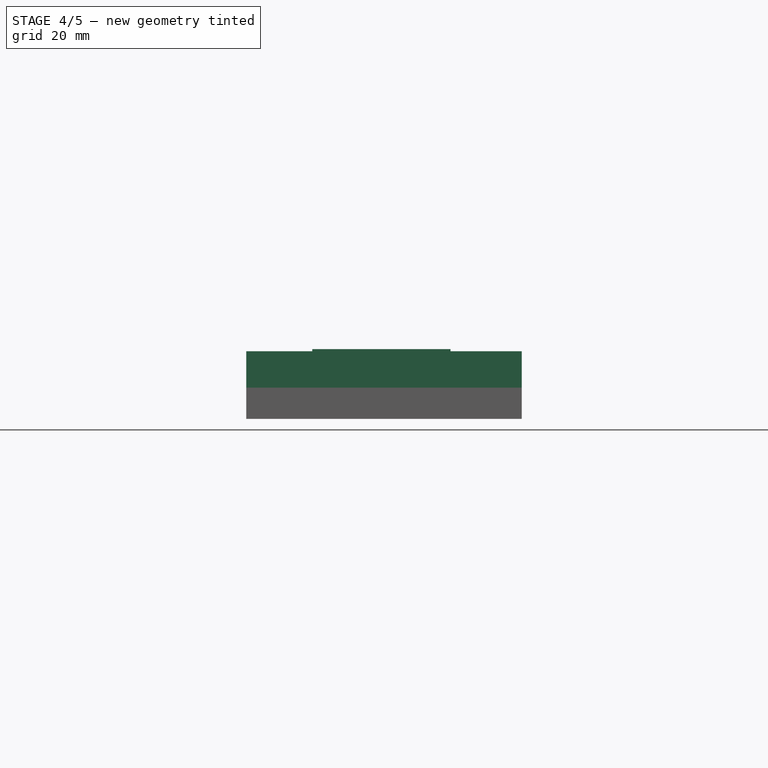
[diagram: stage 4 of 5 — front view after this stage's code; geometry added in this stage tinted green]
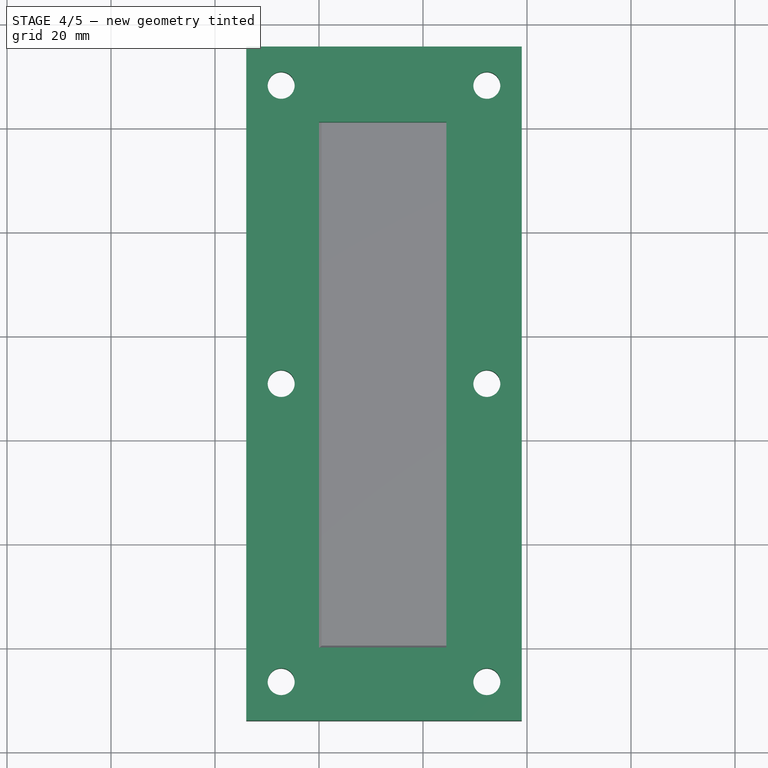
[diagram: stage 4 of 5 — top view after this stage's code; geometry added in this stage tinted green]
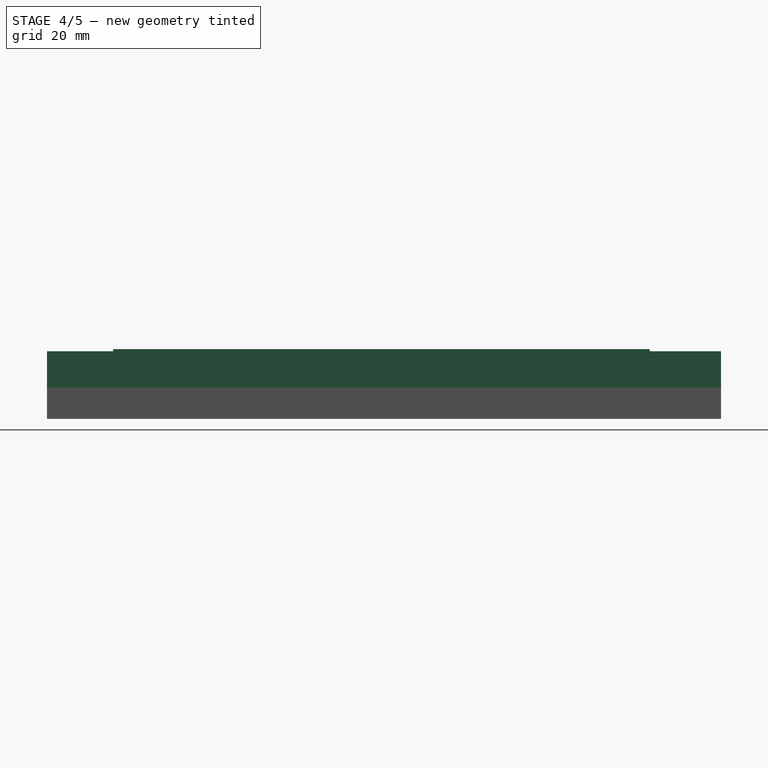
[diagram: stage 4 of 5 — right view after this stage's code; geometry added in this stage tinted green]
FEATURE [PartDesign::ShapeBinder] ShapeBinder
  Support = -> [Pad001]
  TraceSupport = false
FEATURE [Sketcher::SketchObject] Sketch002
  ExternalGeometry = -> [ShapeBinder]
  FullyConstrained = true
  MapMode = 5
  Placement = pos=(0,0,0) rot=(1,0,0;3.14159rad)
  Support = -> [ShapeBinder]
  sketch-geometry (24):
    g0: LineSegment StartX=0 StartY=-2e-16 StartZ=0 EndX=-0.5 EndY=-2e-16 EndZ=0
    g1: LineSegment StartX=-0.5 StartY=-2e-16 StartZ=0 EndX=-0.5 EndY=0.5 EndZ=0
    g2: LineSegment StartX=-0.5 StartY=0.5 StartZ=0 EndX=0 EndY=0.5 EndZ=0
    g3: LineSegment StartX=0 StartY=0.5 StartZ=0 EndX=0 EndY=-1e-16 EndZ=0
    g4: LineSegment StartX=25 StartY=-101.6 StartZ=0 EndX=24.5 EndY=-101.6 EndZ=0
    g5: LineSegment StartX=24.5 StartY=-101.6 StartZ=0 EndX=24.5 EndY=-101.1 EndZ=0
    g6: LineSegment StartX=24.5 StartY=-101.1 StartZ=0 EndX=25 EndY=-101.1 EndZ=0
    g7: LineSegment StartX=25 StartY=-101.1 StartZ=0 EndX=25 EndY=-101.6 EndZ=0
    g8: LineSegment StartX=24.5 StartY=-101.1 StartZ=0 EndX=-0.5 EndY=-101.1 EndZ=0
    g9: LineSegment StartX=-0.5 StartY=-101.1 StartZ=0 EndX=-0.5 EndY=0.5 EndZ=0
    g10: LineSegment StartX=-0.5 StartY=0.5 StartZ=0 EndX=24.5 EndY=0.5 EndZ=0
    g11: LineSegment StartX=24.5 StartY=0.5 StartZ=0 EndX=24.5 EndY=-101.1 EndZ=0
    g12: LineSegment StartX=24.5 StartY=0.5 StartZ=0 EndX=25.3 EndY=0.5 EndZ=0
    g13: LineSegment StartX=25.3 StartY=0.5 StartZ=0 EndX=25.3 EndY=1.3 EndZ=0
    g14: LineSegment StartX=25.3 StartY=1.3 StartZ=0 EndX=24.5 EndY=1.3 EndZ=0
    g15: LineSegment StartX=24.5 StartY=1.3 StartZ=0 EndX=24.5 EndY=0.5 EndZ=0
    g16: LineSegment StartX=-0.5 StartY=-101.1 StartZ=0 EndX=-1.3 EndY=-101.1 EndZ=0
    g17: LineSegment StartX=-1.3 StartY=-101.1 StartZ=0 EndX=-1.3 EndY=-101.9 EndZ=0
    g18: LineSegment StartX=-1.3 StartY=-101.9 StartZ=0 EndX=-0.5 EndY=-101.9 EndZ=0
    g19: LineSegment StartX=-0.5 StartY=-101.9 StartZ=0 EndX=-0.5 EndY=-101.1 EndZ=0
    g20: LineSegment StartX=-1.3 StartY=-101.9 StartZ=0 EndX=25.3 EndY=-101.9 EndZ=0
    g21: LineSegment StartX=25.3 StartY=-101.9 StartZ=0 EndX=25.3 EndY=1.3 EndZ=0
    g22: LineSegment StartX=25.3 StartY=1.3 StartZ=0 EndX=-1.3 EndY=1.3 EndZ=0
    g23: LineSegment StartX=-1.3 StartY=1.3 StartZ=0 EndX=-1.3 EndY=-101.9 EndZ=0
  constraints (64):
    c: Coincident(g0,g1)
    c: Coincident(g1,g2)
    c: Coincident(g2,g3)
    c: Coincident(g3,g0)
    c: Horizontal(g0)
    c: Horizontal(g2)
    c: Vertical(g1)
    c: Vertical(g3)
    c: Coincident(g0,g-3)
    c: Coincident(g4,g5)
    c: Coincident(g5,g6)
    c: Coincident(g6,g7)
    c: Coincident(g7,g4)
    c: Horizontal(g4)
    c: Horizontal(g6)
    c: Vertical(g5)
    c: Vertical(g7)
    c: Coincident(g4,g-4)
    c: Coincident(g8,g9)
    c: Coincident(g9,g10)
    c: Coincident(g10,g11)
    c: Coincident(g11,g8)
    c: Horizontal(g8)
    c: Horizontal(g10)
    c: Vertical(g9)
    c: Vertical(g11)
    c: Coincident(g8,g5)
    c: Coincident(g9,g1)
    c: Coincident(g12,g13)
    c: Coincident(g13,g14)
    c: Coincident(g14,g15)
    c: Coincident(g15,g12)
    c: Horizontal(g12)
    c: Horizontal(g14)
    c: Vertical(g13)
    c: Vertical(g15)
    c: Coincident(g12,g10)
    c: Coincident(g16,g17)
    c: Coincident(g17,g18)
    c: Coincident(g18,g19)
    c: Coincident(g19,g16)
    c: Horizontal(g16)
    c: Horizontal(g18)
    c: Vertical(g17)
    c: Vertical(g19)
    c: Coincident(g16,g8)
    c: Coincident(g20,g21)
    c: Coincident(g21,g22)
    c: Coincident(g22,g23)
    c: Coincident(g23,g20)
    c: Horizontal(g20)
    c: Horizontal(g22)
    c: Vertical(g21)
    c: Vertical(g23)
    c: Coincident(g20,g17)
    c: Coincident(g21,g13)
    c: Equal(g15,g12)
    c: Equal(g12,g19)
    c: Equal(g16,g19)
    c: Equal(g7,g4)
    c: Equal(g4,g0)
    c: Equal(g0,g3)
    c: Distance(g3) = 0.5
    c: Distance(g12) = 0.8
FEATURE [PartDesign::Pad] Pad002
  Direction = (0,0,-1)
  Length = 10
  Length2 = 10
  Offset = 0.4
  Profile = -> Sketch002
  ReferenceAxis = -> Sketch002 [N_Axis]
  Refine = true
  Reversed = true
  Type = 3
  UpToFace = -> Pad001 [Face1]
FEATURE [Sketcher::SketchObject] Sketch012
  ExternalGeometry = -> [Pocket001]
  FullyConstrained = true
  MapMode = 5
  Placement = pos=(0,0,13.8) rot=(0,0,1;0rad)
  Support = -> [Pocket001]
  sketch-geometry (6):
    g0: Circle CenterX=-7.275 CenterY=-6.54404 CenterZ=0 NormalX=0 NormalY=0 NormalZ=1 AngleXU=0 Radius=2.6
    g1: Circle CenterX=32.275 CenterY=-6.54404 CenterZ=0 NormalX=0 NormalY=0 NormalZ=1 AngleXU=0 Radius=2.6
    g2: Circle CenterX=32.275 CenterY=50.8 CenterZ=0 NormalX=0 NormalY=0 NormalZ=1 AngleXU=0 Radius=2.6
    g3: Circle CenterX=-7.275 CenterY=50.8 CenterZ=0 NormalX=0 NormalY=0 NormalZ=1 AngleXU=0 Radius=2.6
    g4: Circle CenterX=-7.275 CenterY=108.144 CenterZ=0 NormalX=0 NormalY=0 NormalZ=1 AngleXU=0 Radius=2.6
    g5: Circle CenterX=32.275 CenterY=108.144 CenterZ=0 NormalX=0 NormalY=0 NormalZ=1 AngleXU=0 Radius=2.6
  constraints (12):
    c: Symmetric(g-3,g-4,g4)
    c: Symmetric(g-5,g-6,g5)
    c: Symmetric(g-7,g-8,g3)
    c: Symmetric(g-10,g-9,g2)
    c: Symmetric(g-13,g-14,g1)
    c: Symmetric(g-11,g-12,g0)
    c: Equal(g0,g1)
    c: Equal(g1,g2)
    c: Equal(g2,g3)
    c: Equal(g3,g4)
    c: Equal(g4,g5)
    c: Diameter(g5) = 5.2
FEATURE [PartDesign::Pocket] Pocket004
  BaseFeature = -> Pocket001
  Direction = (0,0,-1)
  Length = 10
  Length2 = 5
  Profile = -> Sketch012
  ReferenceAxis = -> Sketch012 [N_Axis]
  Type = 0
FEATURE [PartDesign::Chamfer] Chamfer003
  Angle = 45
  Base = -> Pocket004 [Edge69,Edge71,Edge73,Edge75,Edge77,Edge59]
  BaseFeature = -> Pocket004
  ChamferType = 1
  FlipDirection = false
  Size = 2
  Size2 = 1
  SupportTransform = false
  UseAllEdges = false
FEATURE [PartDesign::Body] Body003  label="Top Mold-Bottom"
  Group = -> [ShapeBinder002,ShapeBinder003,Sketch006,Pad005,Sketch007,Pad006,Sketch009,Pocket001,Sketch012,Pocket004,Chamfer003]
  Origin = -> Origin003
  Placement = pos=(0,150,0) rot=(0,0,1;0rad)
  Tip = -> Chamfer003
FEATURE [PartDesign::ShapeBinder] ShapeBinder008
  Support = -> [Chamfer003]
  TraceSupport = false
FEATURE [Sketcher::SketchObject] Sketch013
  ExternalGeometry = -> [ShapeBinder008]
  FullyConstrained = true
  MapMode = 5
  Placement = pos=(0,0,7.8) rot=(0,0,1;0rad)
  Support = -> [Pad004]
  sketch-geometry (6):
    g0: Circle CenterX=-7.275 CenterY=108.144 CenterZ=0 NormalX=0 NormalY=0 NormalZ=1 AngleXU=0 Radius=2.6
    g1: Circle CenterX=32.275 CenterY=108.144 CenterZ=0 NormalX=0 NormalY=0 NormalZ=1 AngleXU=0 Radius=2.6
    g2: Circle CenterX=32.275 CenterY=50.8 CenterZ=0 NormalX=0 NormalY=0 NormalZ=1 AngleXU=0 Radius=2.6
    g3: Circle CenterX=-7.275 CenterY=50.8 CenterZ=0 NormalX=0 NormalY=0 NormalZ=1 AngleXU=0 Radius=2.6
    g4: Circle CenterX=-7.275 CenterY=-6.54404 CenterZ=0 NormalX=0 NormalY=0 NormalZ=1 AngleXU=0 Radius=2.6
    g5: Circle CenterX=32.275 CenterY=-6.54404 CenterZ=0 NormalX=0 NormalY=0 NormalZ=1 AngleXU=0 Radius=2.6
  constraints (12):
    c: Coincident(g-7,g4)
    c: Coincident(g5,g-8)
    c: Coincident(g2,g-5)
    c: Coincident(g3,g-6)
    c: Coincident(g-3,g0)
    c: Coincident(g-4,g1)
    c: Equal(g0,g1)
    c: Equal(g1,g2)
    c: Equal(g2,g3)
    c: Equal(g3,g4)
    c: Equal(g4,g5)
    c: Equal(g5,g-8)
FEATURE [PartDesign::Pocket] Pocket005
  BaseFeature = -> Pad004
  Direction = (0,0,-1)
  Length = 10
  Length2 = 5
  Profile = -> Sketch013
  ReferenceAxis = -> Sketch013 [N_Axis]
  Type = 0
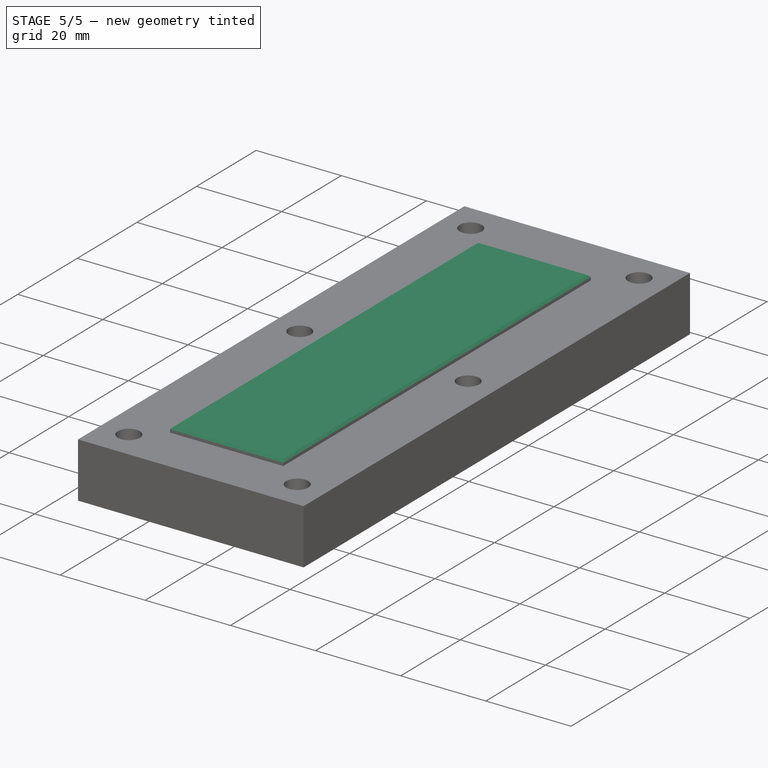
[diagram: stage 5 of 5 — iso view after this stage's code; geometry added in this stage tinted green]
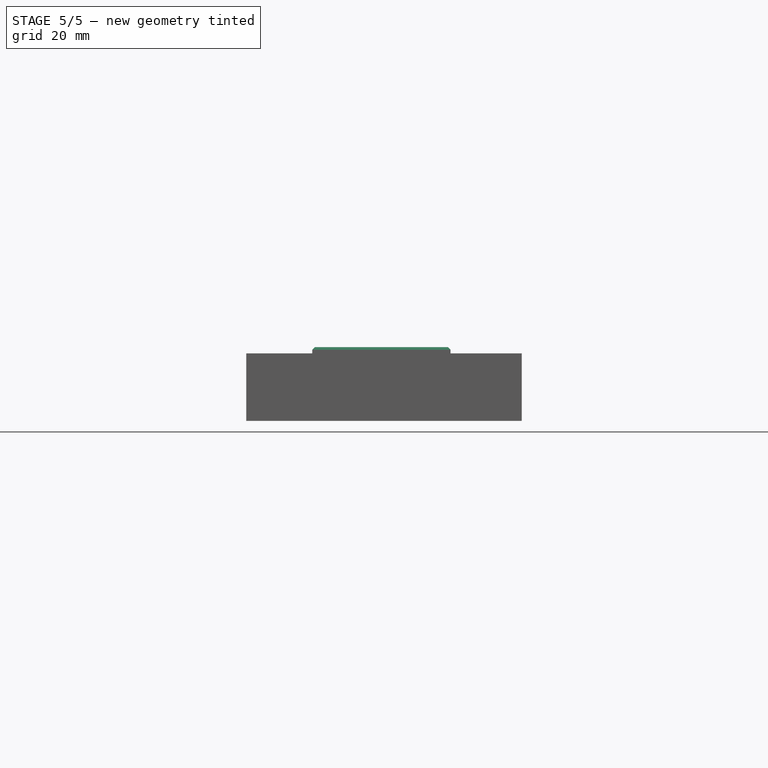
[diagram: stage 5 of 5 — front view after this stage's code; geometry added in this stage tinted green]
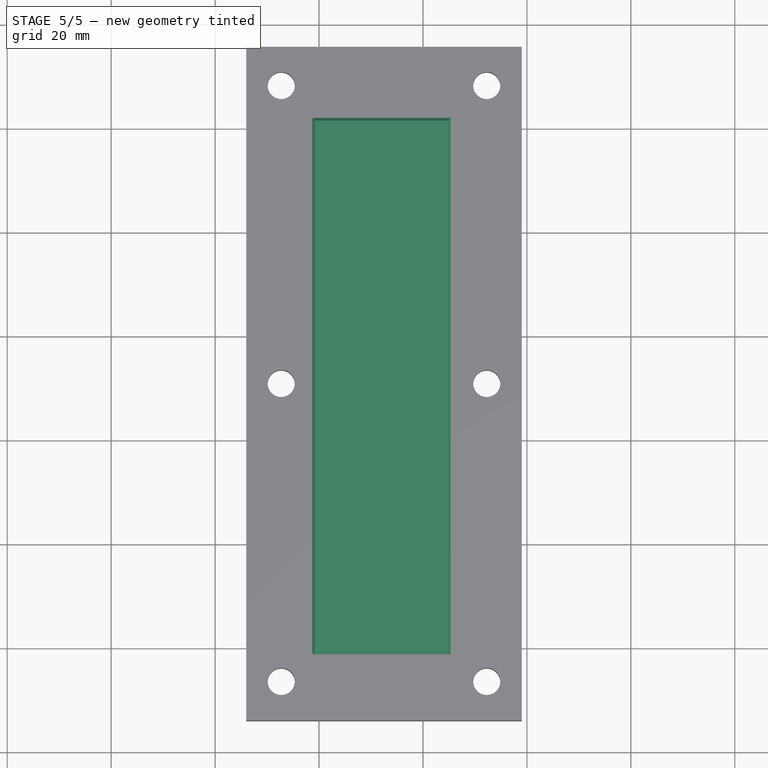
[diagram: stage 5 of 5 — top view after this stage's code; geometry added in this stage tinted green]
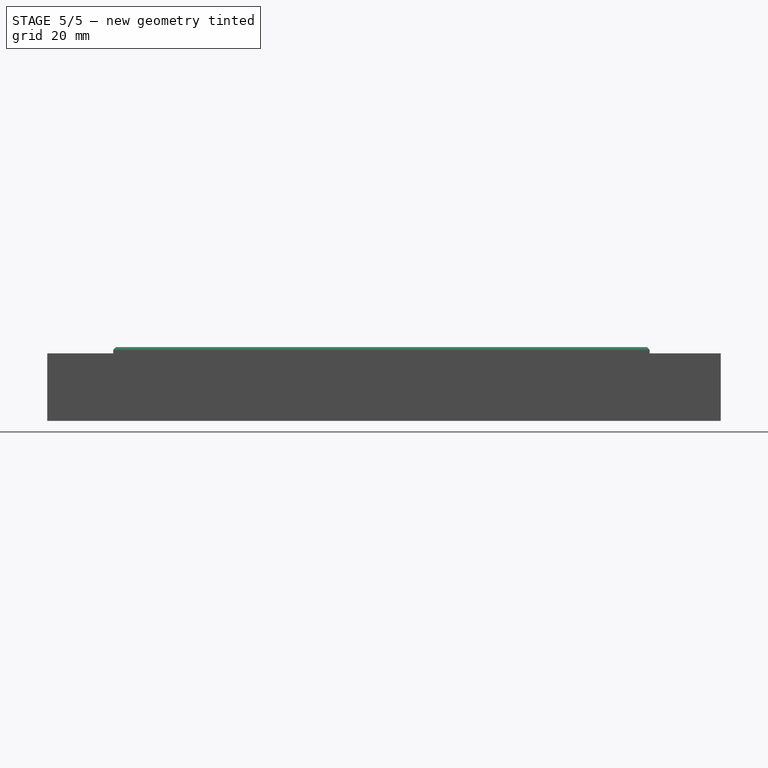
[diagram: stage 5 of 5 — right view after this stage's code; geometry added in this stage tinted green]
FEATURE [Sketcher::SketchObject] Sketch003
  ExternalGeometry = -> [Pad002]
  FullyConstrained = true
  MapMode = 5
  Placement = pos=(0,0,8.2) rot=(0,0,1;0rad)
  Support = -> [Pad002]
  sketch-geometry (4):
    g0: LineSegment StartX=25.3 StartY=-1.3 StartZ=0 EndX=-1.3 EndY=-1.3 EndZ=0
    g1: LineSegment StartX=-1.3 StartY=-1.3 StartZ=0 EndX=-1.3 EndY=101.9 EndZ=0
    g2: LineSegment StartX=-1.3 StartY=101.9 StartZ=0 EndX=25.3 EndY=101.9 EndZ=0
    g3: LineSegment StartX=25.3 StartY=101.9 StartZ=0 EndX=25.3 EndY=-1.3 EndZ=0
  constraints (10):
    c: Coincident(g0,g1)
    c: Coincident(g1,g2)
    c: Coincident(g2,g3)
    c: Coincident(g3,g0)
    c: Horizontal(g0)
    c: Horizontal(g2)
    c: Vertical(g1)
    c: Vertical(g3)
    c: Coincident(g0,g-4)
    c: Coincident(g1,g-3)
FEATURE [PartDesign::Pad] Pad003
  BaseFeature = -> Pad002
  Direction = (0,0,1)
  Length = 0.8
  Length2 = 10
  Profile = -> Sketch003
  ReferenceAxis = -> Sketch003 [N_Axis]
  Refine = true
  Type = 0
FEATURE [Sketcher::SketchObject] Sketch004
  ExternalGeometry = -> [Pad003]
  FullyConstrained = true
  MapMode = 5
  Placement = pos=(-1.3,0,-2.519e-13) rot=(0.57735,-0.57735,-0.57735;2.0944rad)
  Support = -> [Pad003]
  sketch-geometry (3):
    g0: ArcOfCircle CenterX=-50.3 CenterY=-7.5 CenterZ=0 NormalX=0 NormalY=0 NormalZ=1 AngleXU=0 Radius=12.5 StartAngle=0.643501 EndAngle=2.49809
    g1: LineSegment StartX=-60.3 StartY=-2.04e-14 StartZ=0 EndX=-40.3 EndY=-1.95e-14 EndZ=0
    g2: LineSegment StartX=-50.3 StartY=5 StartZ=0 EndX=-50.3 EndY=-1.87e-14 EndZ=0
  constraints (9):
    c: PointOnObject(g0,g-3)
    c: Coincident(g1,g0)
    c: Coincident(g1,g0)
    c: PointOnObject(g2,g0)
    c: Vertical(g2)
    c: Distance(g2) = 5
    c: Symmetric(g0,g0,g2)
    c: Symmetric(g-3,g-3,g2)
    c: Distance(g1) = 20
FEATURE [PartDesign::Pocket] Pocket
  BaseFeature = -> Pad003
  Direction = (1,1e-16,1.937e-13)
  Length = 30
  Length2 = 5
  Profile = -> Sketch004
  ReferenceAxis = -> Sketch004 [N_Axis]
  Type = 0
FEATURE [PartDesign::Fillet] Fillet
  Base = -> Pocket [Edge29,Edge7,Edge3,Edge17]
  BaseFeature = -> Pocket
  Radius = 5
  SupportTransform = false
  UseAllEdges = false
FEATURE [PartDesign::Chamfer] Chamfer
  Angle = 45
  Base = -> Fillet [Face11]
  BaseFeature = -> Fillet
  ChamferType = 0
  FlipDirection = false
  Size = 0.5
  Size2 = 1
  SupportTransform = false
  UseAllEdges = false
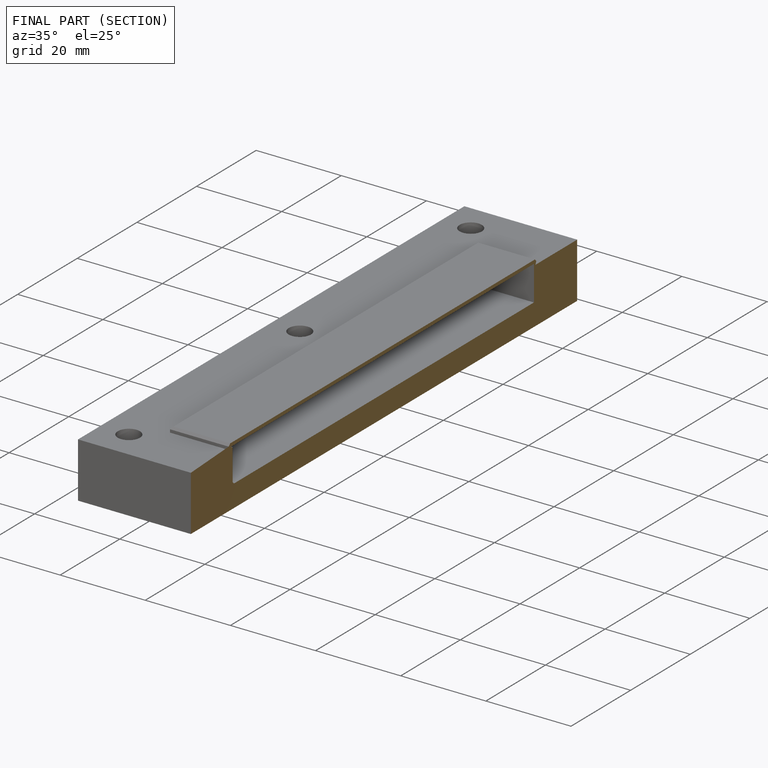
[diagram: finished part — half-section view (interior)]
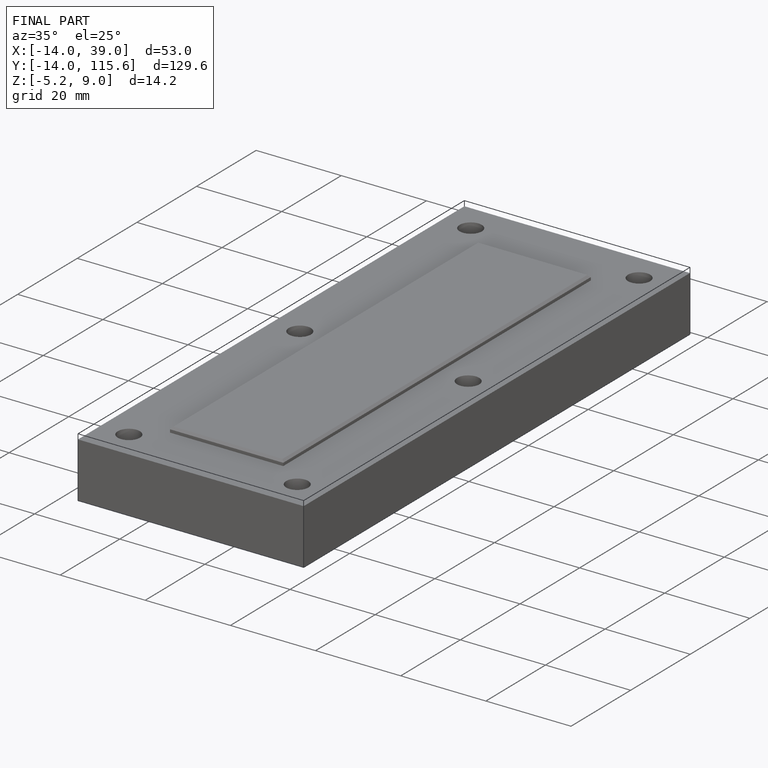
[diagram: finished part — iso view with bounding-box wireframe]
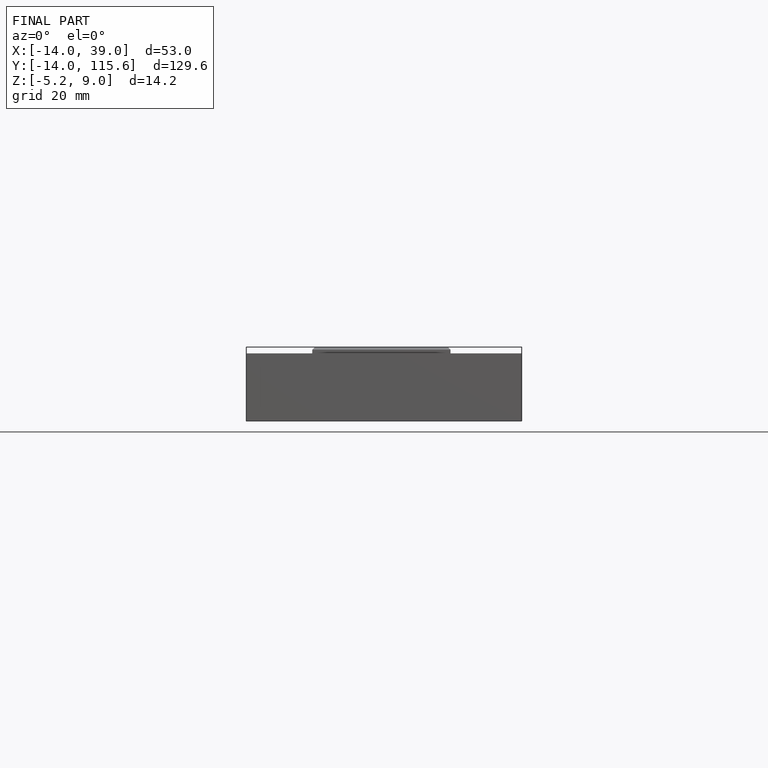
[diagram: finished part — front view with bounding-box wireframe]
